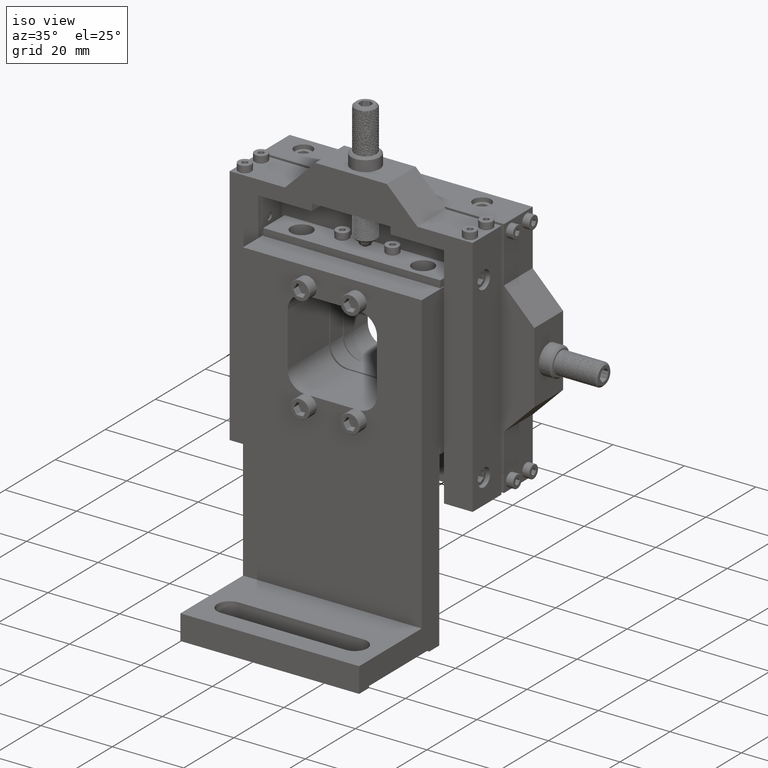
[diagram: clean part render]
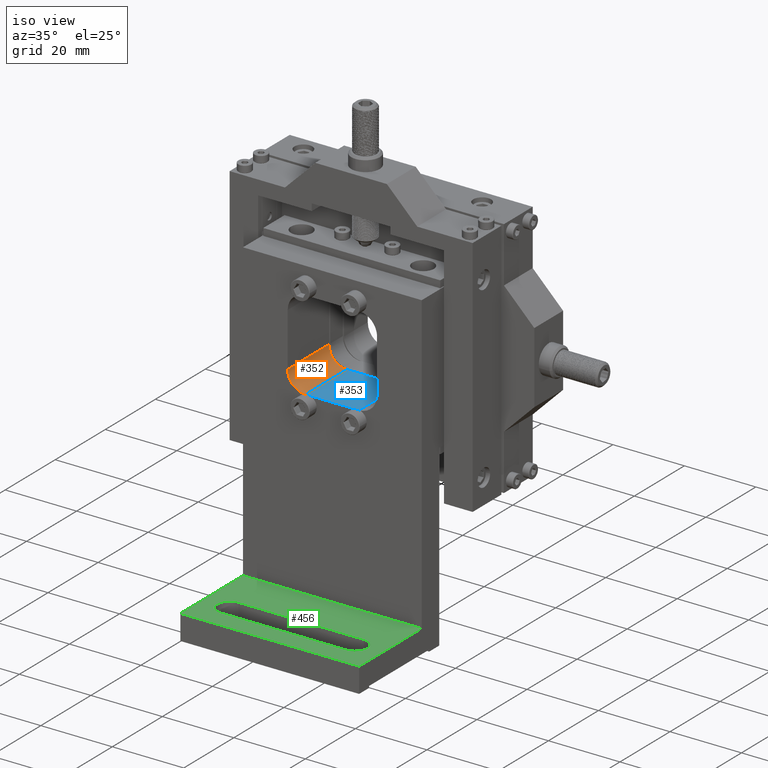
[diagram: same view with three faces highlighted in distinct colors, each labeled with its STEP entity id]
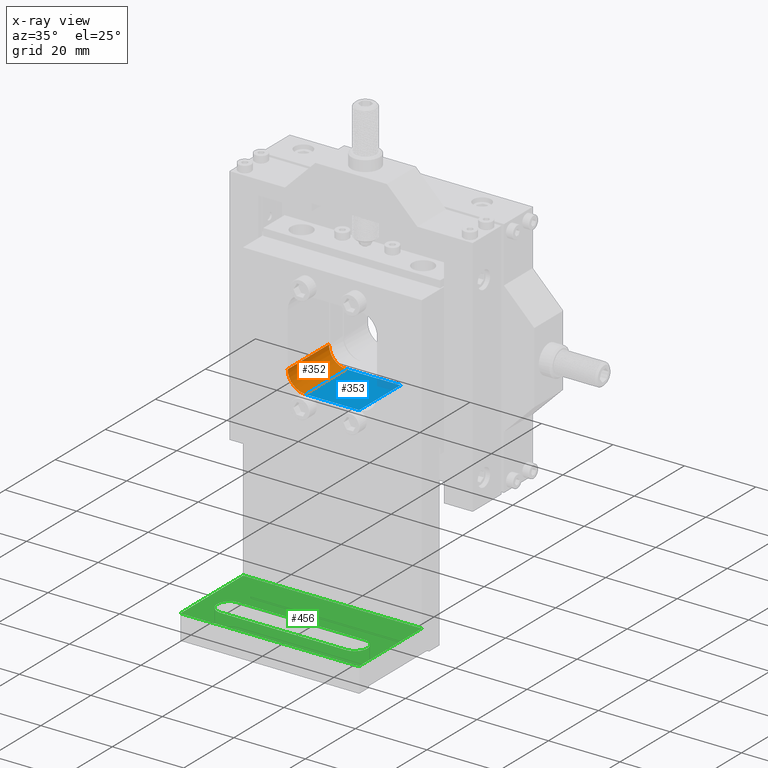
[diagram: x-ray of the same camera — body ghosted, the three highlighted faces saturated]
A machine part, iso view with three faces highlighted in distinct colors.
The next image is the same camera in x-ray (body ghosted, the three faces saturated) — at least one of them is partly hidden behind the body in this view.
Their STEP definitions:

[orange] entity #352 — the highlighted cylindrical surface (edge-blend (fillet) strip) has radius 5 mm, axis along (0, -1, 0).
#352=ADVANCED_FACE('',(#1877),#22284,.F.);
#1877=FACE_OUTER_BOUND('',#3414,.T.);
#3414=EDGE_LOOP('',(#5569,#5570,#5571,#5572,#5573));
#5569=ORIENTED_EDGE('',*,*,#12902,.F.);
#5570=ORIENTED_EDGE('',*,*,#12900,.T.);
#5571=ORIENTED_EDGE('',*,*,#12903,.F.);
#5572=ORIENTED_EDGE('',*,*,#12904,.F.);
#5573=ORIENTED_EDGE('',*,*,#12901,.F.);
#12900=EDGE_CURVE('',#20331,#20194,#17530,.T.);
#12901=EDGE_CURVE('',#20332,#20422,#17531,.T.);
#12902=EDGE_CURVE('',#20331,#20332,#16422,.T.);
#12903=EDGE_CURVE('',#20193,#20194,#16423,.T.);
#12904=EDGE_CURVE('',#20422,#20193,#16424,.T.);
#16422=(
BOUNDED_CURVE()
B_SPLINE_CURVE(2,(#28788,#28789,#28790),.UNSPECIFIED.,.F.,.F.)
B_SPLINE_CURVE_WITH_KNOTS((3,3),(-7.85398163397438,0.),.UNSPECIFIED.)
CURVE()
GEOMETRIC_REPRESENTATION_ITEM()
RATIONAL_B_SPLINE_CURVE((1.,0.707106781186555,1.))
REPRESENTATION_ITEM('')
);
#16423=(
BOUNDED_CURVE()
B_SPLINE_CURVE(2,(#28791,#28792,#28793),.UNSPECIFIED.,.F.,.F.)
B_SPLINE_CURVE_WITH_KNOTS((3,3),(-7.65394328194008,0.),.UNSPECIFIED.)
CURVE()
GEOMETRIC_REPRESENTATION_ITEM()
RATIONAL_B_SPLINE_CURVE((1.,0.721109214494192,1.))
REPRESENTATION_ITEM('')
);
#16424=(
BOUNDED_CURVE()
B_SPLINE_CURVE(2,(#28794,#28795,#28796),.UNSPECIFIED.,.F.,.F.)
B_SPLINE_CURVE_WITH_KNOTS((3,3),(-0.200038352034446,0.),.UNSPECIFIED.)
CURVE()
GEOMETRIC_REPRESENTATION_ITEM()
RATIONAL_B_SPLINE_CURVE((1.,0.99979992996028,1.))
REPRESENTATION_ITEM('')
);
#17530=B_SPLINE_CURVE_WITH_KNOTS('',1,(#28784,#28785),.UNSPECIFIED.,.F.,
 .F.,(2,2),(-16.5,0.),.UNSPECIFIED.);
#17531=B_SPLINE_CURVE_WITH_KNOTS('',1,(#28786,#28787),.UNSPECIFIED.,.F.,
 .F.,(2,2),(-16.5,0.),.UNSPECIFIED.);
#20193=VERTEX_POINT('',#27330);
#20194=VERTEX_POINT('',#27331);
#20331=VERTEX_POINT('',#27468);
#20332=VERTEX_POINT('',#27469);
#20422=VERTEX_POINT('',#27559);
#22284=CYLINDRICAL_SURFACE('',#23915,5.);
#23915=AXIS2_PLACEMENT_3D('',#26733,#25260,$);
#25260=DIRECTION('',(0.,-1.,0.));
#26733=CARTESIAN_POINT('',(-19.4999975952793,4.74999383561401,62.5008218490967));
#27330=CARTESIAN_POINT('',(-19.6999825875636,-3.50000616438599,57.5048228496111));
#27331=CARTESIAN_POINT('',(-24.4999975952794,-3.50000616438599,62.5008218490968));
#27468=CARTESIAN_POINT('',(-24.4999975952793,12.999993835614,62.5008218490966));
#27469=CARTESIAN_POINT('',(-19.4999975952793,12.999993835614,57.5008218490967));
#27559=CARTESIAN_POINT('',(-19.4999975952794,-3.50000616438599,57.5008218490968));
#28784=CARTESIAN_POINT('',(-24.4999975952793,12.999993835614,62.5008218490966));
#28785=CARTESIAN_POINT('',(-24.4999975952794,-3.50000616438599,62.5008218490968));
#28786=CARTESIAN_POINT('',(-19.4999975952793,12.999993835614,57.5008218490967));
#28787=CARTESIAN_POINT('',(-19.4999975952794,-3.50000616438599,57.5008218490968));
#28788=CARTESIAN_POINT('',(-24.4999975952793,12.999993835614,62.5008218490966));
#28789=CARTESIAN_POINT('',(-24.4999975952792,12.999993835614,57.5008218490967));
#28790=CARTESIAN_POINT('',(-19.4999975952793,12.999993835614,57.5008218490967));
#28791=CARTESIAN_POINT('',(-19.6999825875636,-3.50000616438599,57.5048228496111));
#28792=CARTESIAN_POINT('',(-24.4999975952794,-3.50000616438599,57.6969627928699));
#28793=CARTESIAN_POINT('',(-24.4999975952794,-3.50000616438599,62.5008218490968));
#28794=CARTESIAN_POINT('',(-19.4999975952794,-3.50000616438599,57.5008218490968));
#28795=CARTESIAN_POINT('',(-19.6000301144375,-3.50000616438599,57.5008218490968));
#28796=CARTESIAN_POINT('',(-19.6999825875636,-3.50000616438599,57.5048228496111));

[blue] entity #353 — the highlighted planar face has unit normal (0, 0, 1).
#353=ADVANCED_FACE('',(#1878),#23070,.T.);
#1878=FACE_OUTER_BOUND('',#3415,.T.);
#3415=EDGE_LOOP('',(#5574,#5575,#5576,#5577,#5578,#5579));
#5574=ORIENTED_EDGE('',*,*,#12775,.F.);
#5575=ORIENTED_EDGE('',*,*,#12901,.T.);
#5576=ORIENTED_EDGE('',*,*,#12906,.F.);
#5577=ORIENTED_EDGE('',*,*,#12602,.F.);
#5578=ORIENTED_EDGE('',*,*,#12604,.F.);
#5579=ORIENTED_EDGE('',*,*,#12905,.F.);
#12602=EDGE_CURVE('',#20191,#20192,#17294,.T.);
#12604=EDGE_CURVE('',#20196,#20191,#17296,.T.);
#12775=EDGE_CURVE('',#20332,#20333,#17440,.T.);
#12901=EDGE_CURVE('',#20332,#20422,#17531,.T.);
#12905=EDGE_CURVE('',#20333,#20196,#17532,.T.);
#12906=EDGE_CURVE('',#20192,#20422,#17533,.T.);
#17294=B_SPLINE_CURVE_WITH_KNOTS('',1,(#27889,#27890),.UNSPECIFIED.,.F.,
 .F.,(2,2),(0.,12.5717143142903),.UNSPECIFIED.);
#17296=B_SPLINE_CURVE_WITH_KNOTS('',1,(#27893,#27894),.UNSPECIFIED.,.F.,
 .F.,(2,2),(0.,1.2141428428541),.UNSPECIFIED.);
#17440=B_SPLINE_CURVE_WITH_KNOTS('',1,(#28453,#28454),.UNSPECIFIED.,.F.,
 .F.,(2,2),(0.,14.9999999999999),.UNSPECIFIED.);
#17531=B_SPLINE_CURVE_WITH_KNOTS('',1,(#28786,#28787),.UNSPECIFIED.,.F.,
 .F.,(2,2),(-16.5,0.),.UNSPECIFIED.);
#17532=B_SPLINE_CURVE_WITH_KNOTS('',1,(#28797,#28798),.UNSPECIFIED.,.F.,
 .F.,(2,2),(-16.5,0.),.UNSPECIFIED.);
#17533=B_SPLINE_CURVE_WITH_KNOTS('',1,(#28799,#28800),.UNSPECIFIED.,.F.,
 .F.,(2,2),(-1.2141428428553,0.),.UNSPECIFIED.);
#20191=VERTEX_POINT('',#27328);
#20192=VERTEX_POINT('',#27329);
#20196=VERTEX_POINT('',#27333);
#20332=VERTEX_POINT('',#27469);
#20333=VERTEX_POINT('',#27470);
#20422=VERTEX_POINT('',#27559);
#23070=PLANE('',#23916);
#23916=AXIS2_PLACEMENT_3D('',#26734,#25261,$);
#25261=DIRECTION('',(0.,0.,1.));
#26734=CARTESIAN_POINT('',(-21.1199975952794,14.769993835614,57.5008218490966));
#27328=CARTESIAN_POINT('',(-5.71414043813377,-3.50000616438599,57.5008218490968));
#27329=CARTESIAN_POINT('',(-18.2858547524241,-3.50000616438599,57.5008218490967));
#27333=CARTESIAN_POINT('',(-4.49999759527967,-3.50000616438599,57.5008218490968));
#27469=CARTESIAN_POINT('',(-19.4999975952793,12.999993835614,57.5008218490967));
#27470=CARTESIAN_POINT('',(-4.49999759527937,12.999993835614,57.5008218490968));
#27559=CARTESIAN_POINT('',(-19.4999975952794,-3.50000616438599,57.5008218490968));
#27889=CARTESIAN_POINT('',(-5.71414043813377,-3.50000616438599,57.5008218490968));
#27890=CARTESIAN_POINT('',(-18.2858547524241,-3.50000616438599,57.5008218490967));
#27893=CARTESIAN_POINT('',(-4.49999759527967,-3.50000616438599,57.5008218490968));
#27894=CARTESIAN_POINT('',(-5.71414043813377,-3.50000616438599,57.5008218490968));
#28453=CARTESIAN_POINT('',(-19.4999975952793,12.999993835614,57.5008218490967));
#28454=CARTESIAN_POINT('',(-4.49999759527937,12.999993835614,57.5008218490968));
#28786=CARTESIAN_POINT('',(-19.4999975952793,12.999993835614,57.5008218490967));
#28787=CARTESIAN_POINT('',(-19.4999975952794,-3.50000616438599,57.5008218490968));
#28797=CARTESIAN_POINT('',(-4.49999759527937,12.999993835614,57.5008218490968));
#28798=CARTESIAN_POINT('',(-4.49999759527967,-3.50000616438599,57.5008218490968));
#28799=CARTESIAN_POINT('',(-18.2858547524241,-3.50000616438599,57.5008218490967));
#28800=CARTESIAN_POINT('',(-19.4999975952794,-3.50000616438599,57.5008218490968));

[green] entity #456 — the highlighted planar face has unit normal (0, 0, 1).
#92=FACE_BOUND('',#3531,.T.);
#456=ADVANCED_FACE('',(#1981,#92),#23150,.T.);
#1981=FACE_OUTER_BOUND('',#3530,.T.);
#3530=EDGE_LOOP('',(#6071,#6072,#6073,#6074));
#3531=EDGE_LOOP('',(#6075,#6076,#6077,#6078));
#6071=ORIENTED_EDGE('',*,*,#13109,.F.);
#6072=ORIENTED_EDGE('',*,*,#12757,.F.);
#6073=ORIENTED_EDGE('',*,*,#12596,.F.);
#6074=ORIENTED_EDGE('',*,*,#12803,.F.);
#6075=ORIENTED_EDGE('',*,*,#13111,.T.);
#6076=ORIENTED_EDGE('',*,*,#13114,.T.);
#6077=ORIENTED_EDGE('',*,*,#13110,.T.);
#6078=ORIENTED_EDGE('',*,*,#13124,.T.);
#12596=EDGE_CURVE('',#20182,#20183,#17288,.T.);
#12757=EDGE_CURVE('',#20183,#20306,#17422,.T.);
#12803=EDGE_CURVE('',#20368,#20182,#17468,.T.);
#13109=EDGE_CURVE('',#20306,#20368,#17683,.T.);
#13110=EDGE_CURVE('',#20524,#20525,#17684,.T.);
#13111=EDGE_CURVE('',#20526,#20523,#17685,.T.);
#13114=EDGE_CURVE('',#20523,#20524,#16479,.T.);
#13124=EDGE_CURVE('',#20525,#20526,#16481,.T.);
#16479=(
BOUNDED_CURVE()
B_SPLINE_CURVE(2,(#29343,#29344,#29345,#29346,#29347),.UNSPECIFIED.,.F.,
 .F.)
B_SPLINE_CURVE_WITH_KNOTS((3,2,3),(-10.9955742875643,-5.49778714378214,
0.),.UNSPECIFIED.)
CURVE()
GEOMETRIC_REPRESENTATION_ITEM()
RATIONAL_B_SPLINE_CURVE((1.,0.707106781186548,1.,0.707106781186548,1.))
REPRESENTATION_ITEM('')
);
#16481=(
BOUNDED_CURVE()
B_SPLINE_CURVE(2,(#29369,#29370,#29371,#29372,#29373),.UNSPECIFIED.,.F.,
 .F.)
B_SPLINE_CURVE_WITH_KNOTS((3,2,3),(-10.9955742875643,-5.49778714378214,
0.),.UNSPECIFIED.)
CURVE()
GEOMETRIC_REPRESENTATION_ITEM()
RATIONAL_B_SPLINE_CURVE((1.,0.707106781186547,1.,0.707106781186547,1.))
REPRESENTATION_ITEM('')
);
#17288=B_SPLINE_CURVE_WITH_KNOTS('',1,(#27877,#27878),.UNSPECIFIED.,.F.,
 .F.,(2,2),(0.,50.),.UNSPECIFIED.);
#17422=B_SPLINE_CURVE_WITH_KNOTS('',1,(#28417,#28418),.UNSPECIFIED.,.F.,
 .F.,(2,2),(0.,25.),.UNSPECIFIED.);
#17468=B_SPLINE_CURVE_WITH_KNOTS('',1,(#28509,#28510),.UNSPECIFIED.,.F.,
 .F.,(2,2),(0.,25.),.UNSPECIFIED.);
#17683=B_SPLINE_CURVE_WITH_KNOTS('',1,(#29330,#29331),.UNSPECIFIED.,.F.,
 .F.,(2,2),(0.,50.),.UNSPECIFIED.);
#17684=B_SPLINE_CURVE_WITH_KNOTS('',1,(#29332,#29333),.UNSPECIFIED.,.F.,
 .F.,(2,2),(0.,35.),.UNSPECIFIED.);
#17685=B_SPLINE_CURVE_WITH_KNOTS('',1,(#29334,#29335),.UNSPECIFIED.,.F.,
 .F.,(2,2),(0.,35.),.UNSPECIFIED.);
#20182=VERTEX_POINT('',#27319);
#20183=VERTEX_POINT('',#27320);
#20306=VERTEX_POINT('',#27443);
#20368=VERTEX_POINT('',#27505);
#20523=VERTEX_POINT('',#27660);
#20524=VERTEX_POINT('',#27661);
#20525=VERTEX_POINT('',#27662);
#20526=VERTEX_POINT('',#27663);
#23150=PLANE('',#24014);
#24014=AXIS2_PLACEMENT_3D('',#26882,#25359,$);
#25359=DIRECTION('',(0.,0.,1.));
#26882=CARTESIAN_POINT('',(-42.1199975952795,-0.880006164385995,7.00082184909675));
#27319=CARTESIAN_POINT('',(-36.9999975952795,-3.50000616438599,7.00082184909675));
#27320=CARTESIAN_POINT('',(13.0000024047204,-3.50000616438599,7.00082184909675));
#27443=CARTESIAN_POINT('',(13.0000024047204,-28.500006164386,7.00082184909675));
#27505=CARTESIAN_POINT('',(-36.9999975952795,-28.500006164386,7.00082184909675));
#27660=CARTESIAN_POINT('',(-29.4999975952796,-23.000006164386,7.00082184909675));
#27661=CARTESIAN_POINT('',(-29.4999975952796,-16.000006164386,7.00082184909675));
#27662=CARTESIAN_POINT('',(5.50000240472043,-16.000006164386,7.00082184909675));
#27663=CARTESIAN_POINT('',(5.50000240472043,-23.000006164386,7.00082184909675));
#27877=CARTESIAN_POINT('',(-36.9999975952795,-3.50000616438599,7.00082184909675));
#27878=CARTESIAN_POINT('',(13.0000024047204,-3.50000616438599,7.00082184909675));
#28417=CARTESIAN_POINT('',(13.0000024047204,-3.50000616438599,7.00082184909675));
#28418=CARTESIAN_POINT('',(13.0000024047204,-28.500006164386,7.00082184909675));
#28509=CARTESIAN_POINT('',(-36.9999975952795,-28.500006164386,7.00082184909675));
#28510=CARTESIAN_POINT('',(-36.9999975952795,-3.50000616438599,7.00082184909675));
#29330=CARTESIAN_POINT('',(13.0000024047204,-28.500006164386,7.00082184909675));
#29331=CARTESIAN_POINT('',(-36.9999975952795,-28.500006164386,7.00082184909675));
#29332=CARTESIAN_POINT('',(-29.4999975952796,-16.000006164386,7.00082184909675));
#29333=CARTESIAN_POINT('',(5.50000240472043,-16.000006164386,7.00082184909675));
#29334=CARTESIAN_POINT('',(5.50000240472043,-23.000006164386,7.00082184909675));
#29335=CARTESIAN_POINT('',(-29.4999975952796,-23.000006164386,7.00082184909675));
#29343=CARTESIAN_POINT('',(-29.4999975952796,-23.000006164386,7.00082184909675));
#29344=CARTESIAN_POINT('',(-32.9999975952796,-23.000006164386,7.00082184909675));
#29345=CARTESIAN_POINT('',(-32.9999975952796,-19.500006164386,7.00082184909675));
#29346=CARTESIAN_POINT('',(-32.9999975952796,-16.000006164386,7.00082184909675));
#29347=CARTESIAN_POINT('',(-29.4999975952796,-16.000006164386,7.00082184909675));
#29369=CARTESIAN_POINT('',(5.50000240472043,-16.000006164386,7.00082184909675));
#29370=CARTESIAN_POINT('',(9.00000240472043,-16.000006164386,7.00082184909675));
#29371=CARTESIAN_POINT('',(9.00000240472044,-19.500006164386,7.00082184909675));
#29372=CARTESIAN_POINT('',(9.00000240472044,-23.000006164386,7.00082184909675));
#29373=CARTESIAN_POINT('',(5.50000240472043,-23.000006164386,7.00082184909675));